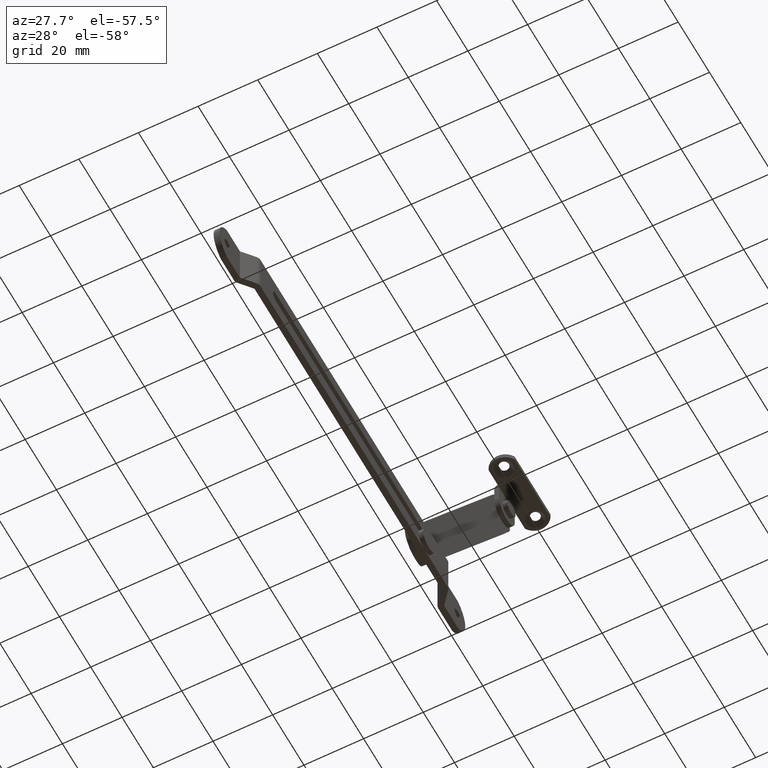
[diagram: clean part render]
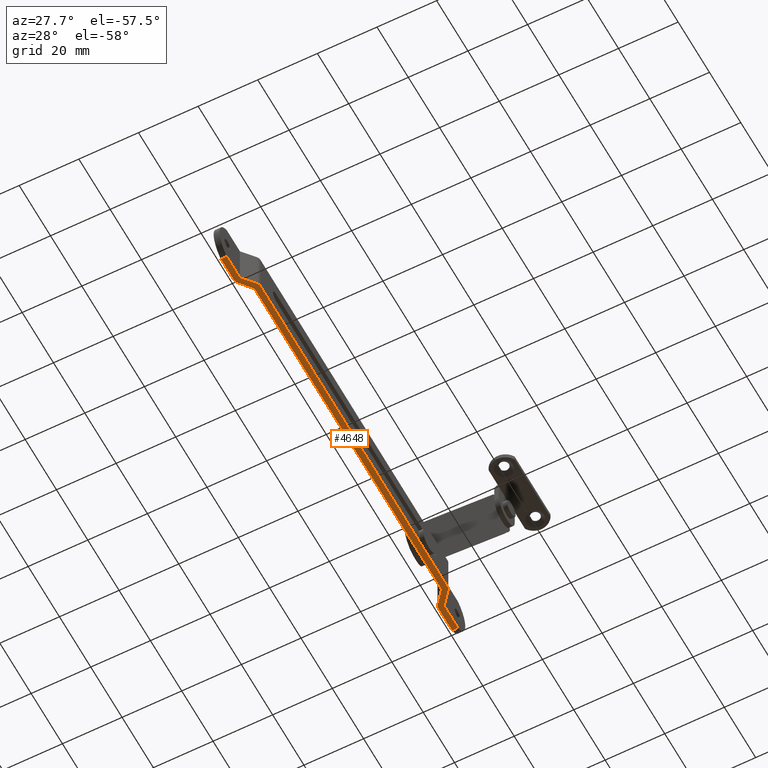
[diagram: same view with one face highlighted and labeled with its STEP entity id]
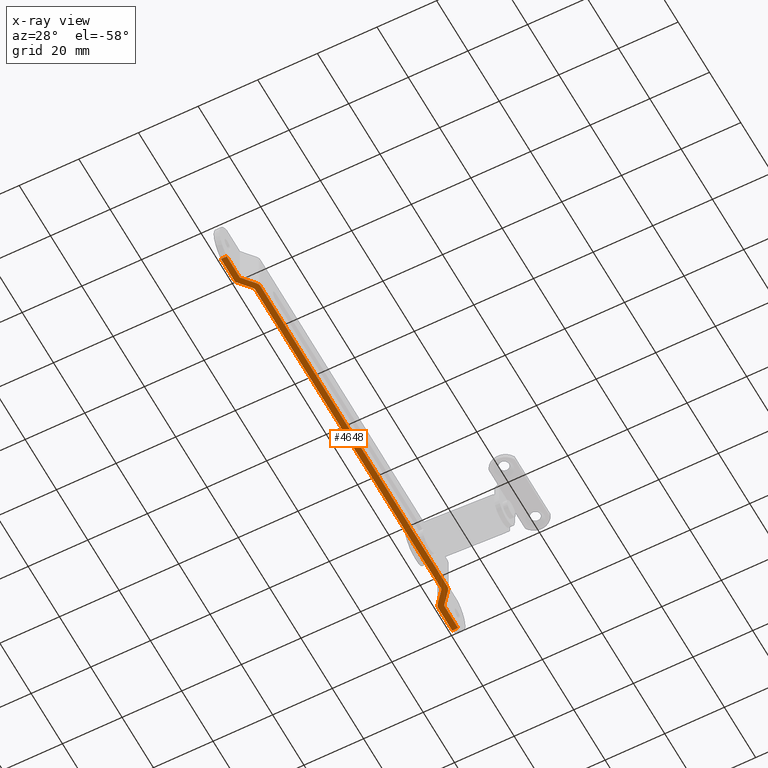
[diagram: x-ray of the same camera — body ghosted, the highlighted face saturated]
A machine part, auxiliary view. The second image highlights one B-rep face of the part: STEP entity #4648.
The next image is the same camera in x-ray: the body ghosted, the highlighted face saturated — about 0% of this face is hidden behind the body in this view.
In plain terms, the highlighted face is a freeform B-spline surface patch.
Its self-contained STEP definition (entity closure, byte-faithful):
#3962=CARTESIAN_POINT('',(2.0,0.381937314616976,-7.250000000000110));
#3963=VERTEX_POINT('',#3962);
#3979=CARTESIAN_POINT('',(0.0,0.381937314617470,-7.249999999999890));
#3980=VERTEX_POINT('',#3979);
#3981=CARTESIAN_POINT('',(2.0,0.381937314616976,-7.250000000000110));
#3982=CARTESIAN_POINT('',(0.0,0.381937314617470,-7.249999999999890));
#3983=QUASI_UNIFORM_CURVE('',1,(#3981,#3982),.UNSPECIFIED.,.F.,.U.);
#3984=EDGE_CURVE('',#3963,#3980,#3983,.T.);
#4029=CARTESIAN_POINT('',(2.0,-147.381937314617400,-7.249999999999881));
#4030=VERTEX_POINT('',#4029);
#4055=CARTESIAN_POINT('',(0.0,-147.381937314617200,-7.250000000000110));
#4056=VERTEX_POINT('',#4055);
#4072=CARTESIAN_POINT('',(2.0,-147.381937314617400,-7.249999999999881));
#4073=CARTESIAN_POINT('',(0.0,-147.381937314617200,-7.250000000000110));
#4074=QUASI_UNIFORM_CURVE('',1,(#4072,#4073),.UNSPECIFIED.,.F.,.U.);
#4075=EDGE_CURVE('',#4030,#4056,#4074,.T.);
#4513=CARTESIAN_POINT('',(-0.299699988370841,-154.762748114358690,-7.250000000000110));
#4514=CARTESIAN_POINT('',(6.299700149303493,-154.762748114358690,-7.250000000000110));
#4515=CARTESIAN_POINT('',(-0.299699988370841,7.762746793246842,-7.250000000000110));
#4516=CARTESIAN_POINT('',(6.299700149303493,7.762746793246842,-7.250000000000110));
#4517=B_SPLINE_SURFACE_WITH_KNOTS('',1,1,((#4513,#4515),(#4514,#4516)),.UNSPECIFIED.,.F.,.F.,.U.,(2,2),(2,2),(0.0,6.599400137674333),(0.0,162.525494907605490),.UNSPECIFIED.);
#4518=ORIENTED_EDGE('',*,*,#3984,.F.);
#4519=CARTESIAN_POINT('',(2.0,-8.499876000000000,-7.250000000000091));
#4520=VERTEX_POINT('',#4519);
#4521=CARTESIAN_POINT('',(2.0,0.381937314616976,-7.250000000000110));
#4522=CARTESIAN_POINT('',(2.0,-8.499876000000000,-7.250000000000091));
#4523=QUASI_UNIFORM_CURVE('',1,(#4521,#4522),.UNSPECIFIED.,.F.,.U.);
#4524=EDGE_CURVE('',#3963,#4520,#4523,.T.);
#4525=ORIENTED_EDGE('',*,*,#4524,.T.);
#4526=CARTESIAN_POINT('',(5.528865033223390,-12.710653496459260,-7.250000000000091));
#4527=VERTEX_POINT('',#4526);
#4528=CARTESIAN_POINT('',(2.0,-8.499876000000000,-7.250000000000091));
#4529=CARTESIAN_POINT('',(5.528865033223390,-12.710653496459260,-7.250000000000091));
#4530=QUASI_UNIFORM_CURVE('',1,(#4528,#4529),.UNSPECIFIED.,.F.,.U.);
#4531=EDGE_CURVE('',#4520,#4527,#4530,.T.);
#4532=ORIENTED_EDGE('',*,*,#4531,.T.);
#4533=CARTESIAN_POINT('',(6.000000000000110,-14.000061000000020,-7.250000000000091));
#4534=VERTEX_POINT('',#4533);
#4535=CARTESIAN_POINT('',(5.528865033223386,-12.710653496459260,-7.250000000000091));
#4536=CARTESIAN_POINT('',(6.000000000000116,-13.269283545265228,-7.250000000000090));
#4537=CARTESIAN_POINT('',(6.000000000000116,-14.000061000000020,-7.250000000000091));
#4545=(BOUNDED_CURVE()B_SPLINE_CURVE(2,(#4535,#4536,#4537),.UNSPECIFIED.,.F.,.U.)CURVE()GEOMETRIC_REPRESENTATION_ITEM()QUASI_UNIFORM_CURVE()RATIONAL_B_SPLINE_CURVE((1.0,0.939263678796225,1.0))REPRESENTATION_ITEM(''));
#4546=EDGE_CURVE('',#4527,#4534,#4545,.T.);
#4547=ORIENTED_EDGE('',*,*,#4546,.T.);
#4548=CARTESIAN_POINT('',(6.000000000000110,-133.499968999999990,-7.250000000000091));
#4549=VERTEX_POINT('',#4548);
#4550=CARTESIAN_POINT('',(6.000000000000110,-14.000061000000020,-7.250000000000091));
#4551=CARTESIAN_POINT('',(6.000000000000110,-133.499968999999990,-7.250000000000091));
#4552=QUASI_UNIFORM_CURVE('',1,(#4550,#4551),.UNSPECIFIED.,.F.,.U.);
#4553=EDGE_CURVE('',#4534,#4549,#4552,.T.);
#4554=ORIENTED_EDGE('',*,*,#4553,.T.);
#4555=CARTESIAN_POINT('',(5.528841963319090,-134.789403857290210,-7.250000000000091));
#4556=VERTEX_POINT('',#4555);
#4557=CARTESIAN_POINT('',(6.000000000000116,-133.499968999999990,-7.250000000000091));
#4558=CARTESIAN_POINT('',(6.000000000000116,-134.230766735173940,-7.250000000000091));
#4559=CARTESIAN_POINT('',(5.528841963319079,-134.789403857290210,-7.250000000000091));
#4567=(BOUNDED_CURVE()B_SPLINE_CURVE(2,(#4557,#4558,#4559),.UNSPECIFIED.,.F.,.U.)CURVE()GEOMETRIC_REPRESENTATION_ITEM()QUASI_UNIFORM_CURVE()RATIONAL_B_SPLINE_CURVE((1.0,0.939260608579824,1.0))REPRESENTATION_ITEM(''));
#4568=EDGE_CURVE('',#4549,#4556,#4567,.T.);
#4569=ORIENTED_EDGE('',*,*,#4568,.T.);
#4570=CARTESIAN_POINT('',(2.0,-139.0,-7.250000000000091));
#4571=VERTEX_POINT('',#4570);
#4572=CARTESIAN_POINT('',(5.528841963319090,-134.789403857290210,-7.250000000000091));
#4573=CARTESIAN_POINT('',(2.0,-139.0,-7.250000000000091));
#4574=QUASI_UNIFORM_CURVE('',1,(#4572,#4573),.UNSPECIFIED.,.F.,.U.);
#4575=EDGE_CURVE('',#4556,#4571,#4574,.T.);
#4576=ORIENTED_EDGE('',*,*,#4575,.T.);
#4577=CARTESIAN_POINT('',(2.0,-139.0,-7.250000000000091));
#4578=CARTESIAN_POINT('',(2.0,-147.381937314617400,-7.249999999999881));
#4579=QUASI_UNIFORM_CURVE('',1,(#4577,#4578),.UNSPECIFIED.,.F.,.U.);
#4580=EDGE_CURVE('',#4571,#4030,#4579,.T.);
#4581=ORIENTED_EDGE('',*,*,#4580,.T.);
#4582=ORIENTED_EDGE('',*,*,#4075,.T.);
#4583=CARTESIAN_POINT('',(0.0,-139.0,-7.250000000000091));
#4584=VERTEX_POINT('',#4583);
#4585=CARTESIAN_POINT('',(0.0,-147.381937314617200,-7.250000000000110));
#4586=CARTESIAN_POINT('',(0.0,-139.0,-7.250000000000091));
#4587=QUASI_UNIFORM_CURVE('',1,(#4585,#4586),.UNSPECIFIED.,.F.,.U.);
#4588=EDGE_CURVE('',#4056,#4584,#4587,.T.);
#4589=ORIENTED_EDGE('',*,*,#4588,.T.);
#4590=CARTESIAN_POINT('',(0.471158036660717,-137.710565142734000,-7.250000000000091));
#4591=VERTEX_POINT('',#4590);
#4592=CARTESIAN_POINT('',(0.0,-139.0,-7.250000000000091));
#4593=CARTESIAN_POINT('',(0.0,-138.269202264843950,-7.250000000000091));
#4594=CARTESIAN_POINT('',(0.471158036660667,-137.710565142733910,-7.250000000000091));
#4602=(BOUNDED_CURVE()B_SPLINE_CURVE(2,(#4592,#4593,#4594),.UNSPECIFIED.,.F.,.U.)CURVE()GEOMETRIC_REPRESENTATION_ITEM()QUASI_UNIFORM_CURVE()RATIONAL_B_SPLINE_CURVE((1.0,0.939260608582535,1.0))REPRESENTATION_ITEM(''));
#4603=EDGE_CURVE('',#4584,#4591,#4602,.T.);
#4604=ORIENTED_EDGE('',*,*,#4603,.T.);
#4605=CARTESIAN_POINT('',(4.000000000000116,-133.499968999999990,-7.250000000000091));
#4606=VERTEX_POINT('',#4605);
#4607=CARTESIAN_POINT('',(0.471158036660717,-137.710565142734000,-7.250000000000091));
#4608=CARTESIAN_POINT('',(4.000000000000116,-133.499968999999990,-7.250000000000091));
#4609=QUASI_UNIFORM_CURVE('',1,(#4607,#4608),.UNSPECIFIED.,.F.,.U.);
#4610=EDGE_CURVE('',#4591,#4606,#4609,.T.);
#4611=ORIENTED_EDGE('',*,*,#4610,.T.);
#4612=CARTESIAN_POINT('',(4.000000000000116,-14.000043999999940,-7.250000000000091));
#4613=VERTEX_POINT('',#4612);
#4614=CARTESIAN_POINT('',(4.000000000000116,-133.499968999999990,-7.250000000000091));
#4615=CARTESIAN_POINT('',(4.000000000000116,-14.000043999999940,-7.250000000000091));
#4616=QUASI_UNIFORM_CURVE('',1,(#4614,#4615),.UNSPECIFIED.,.F.,.U.);
#4617=EDGE_CURVE('',#4606,#4613,#4616,.T.);
#4618=ORIENTED_EDGE('',*,*,#4617,.T.);
#4619=CARTESIAN_POINT('',(0.471156083984498,-9.789432542036369,-7.250000000000091));
#4620=VERTEX_POINT('',#4619);
#4621=CARTESIAN_POINT('',(4.000000000000116,-14.000043999999940,-7.250000000000091));
#4622=CARTESIAN_POINT('',(0.471156083984498,-9.789432542036369,-7.250000000000091));
#4623=QUASI_UNIFORM_CURVE('',1,(#4621,#4622),.UNSPECIFIED.,.F.,.U.);
#4624=EDGE_CURVE('',#4613,#4620,#4623,.T.);
#4625=ORIENTED_EDGE('',*,*,#4624,.T.);
#4626=CARTESIAN_POINT('',(7.549517E-015,-8.499999825467070,-7.250000000000091));
#4627=VERTEX_POINT('',#4626);
#4628=CARTESIAN_POINT('',(0.471156083984495,-9.789432542036371,-7.250000000000091));
#4629=CARTESIAN_POINT('',(-0.000000063773987,-9.230795942981514,-7.250000000000091));
#4630=CARTESIAN_POINT('',(7.372575E-015,-8.499999825467070,-7.250000000000091));
#4638=(BOUNDED_CURVE()B_SPLINE_CURVE(2,(#4628,#4629,#4630),.UNSPECIFIED.,.F.,.U.)CURVE()GEOMETRIC_REPRESENTATION_ITEM()QUASI_UNIFORM_CURVE()RATIONAL_B_SPLINE_CURVE((1.0,0.939260853476189,1.0))REPRESENTATION_ITEM(''));
#4639=EDGE_CURVE('',#4620,#4627,#4638,.T.);
#4640=ORIENTED_EDGE('',*,*,#4639,.T.);
#4641=CARTESIAN_POINT('',(7.549517E-015,-8.499999825467070,-7.250000000000091));
#4642=CARTESIAN_POINT('',(0.0,0.381937314617470,-7.249999999999890));
#4643=QUASI_UNIFORM_CURVE('',1,(#4641,#4642),.UNSPECIFIED.,.F.,.U.);
#4644=EDGE_CURVE('',#4627,#3980,#4643,.T.);
#4645=ORIENTED_EDGE('',*,*,#4644,.T.);
#4646=EDGE_LOOP('',(#4518,#4525,#4532,#4547,#4554,#4569,#4576,#4581,#4582,#4589,#4604,#4611,#4618,#4625,#4640,#4645));
#4647=FACE_OUTER_BOUND('',#4646,.T.);
#4648=ADVANCED_FACE('',(#4647),#4517,.F.);